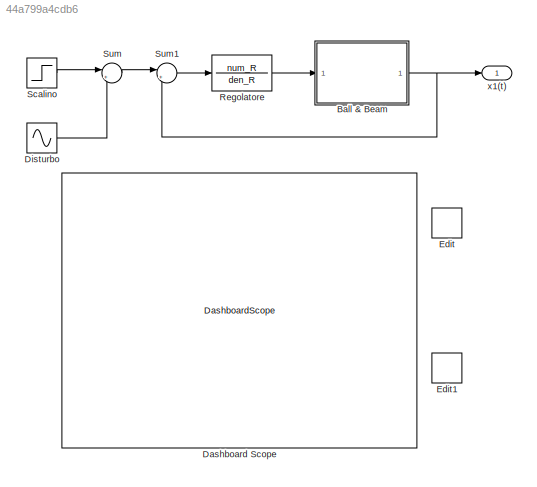
MODEL slx_44a799a4cdb6
KIND model
CONFIG AbsTol = auto
CONFIG EnableMultiTasking = off
CONFIG FixedStep = 0.01
CONFIG MaxStep = 0.01
CONFIG MinStep = auto
CONFIG RelTol = 1e-3
CONFIG SampleTimeConstraint = Unconstrained
CONFIG Solver = VariableStepAuto
CONFIG SolverName = VariableStepAuto
CONFIG StartTime = 0.0
CONFIG StopTime = 10.0
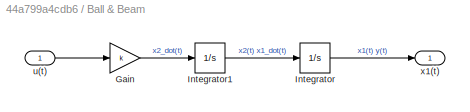
BLOCK [SubSystem] Ball & Beam
  Ports = [1, 1]
  RequestExecContextInheritance = off
  VariantControl = Choice
BLOCK [Gain] Ball & Beam/Gain
  Gain = k
BLOCK [Integrator] Ball & Beam/Integrator
  Ports = [1, 1]
BLOCK [Integrator] Ball & Beam/Integrator1
  Ports = [1, 1]
BLOCK [Inport] Ball & Beam/u(t)
BLOCK [Outport] Ball & Beam/x1(t)
BLOCK [DashboardScope] Dashboard Scope
BLOCK [Sin] Disturbo
  Amplitude = amp
  Frequency = wd
  Ports = [0, 1]
  SampleTime = 0
BLOCK [EditField] Edit
  Alignment = Center
  LabelPosition = Bottom
  ShowInitialText = on
BLOCK [EditField] Edit1
  Alignment = Center
  LabelPosition = Bottom
  ShowInitialText = on
BLOCK [TransferFcn] Regolatore
  Denominator = den_R
  Numerator = num_R
BLOCK [Step] Scalino
  After = r_fin
  SampleTime = 0.01
  Time = 0
BLOCK [Sum] Sum
  Inputs = |++
  Ports = [2, 1]
BLOCK [Sum] Sum1
  Inputs = |+-
  Ports = [2, 1]
BLOCK [Outport] x1(t)
LINE Ball & Beam/Gain:1 -> Ball & Beam/Integrator1:1
LINE Ball & Beam/Integrator1:1 -> Ball & Beam/Integrator:1
LINE Ball & Beam/Integrator:1 -> Ball & Beam/x1(t):1
LINE Ball & Beam/u(t):1 -> Ball & Beam/Gain:1
NET Ball & Beam:1 -> Sum1:2, x1(t):1
LINE Disturbo:1 -> Sum:2
LINE Regolatore:1 -> Ball & Beam:1
LINE Scalino:1 -> Sum:1
LINE Sum1:1 -> Regolatore:1
LINE Sum:1 -> Sum1:1
note: NET lines group one-source signal fan-out (src -> all destinations, sorted); 1:1 wires keep LINE
